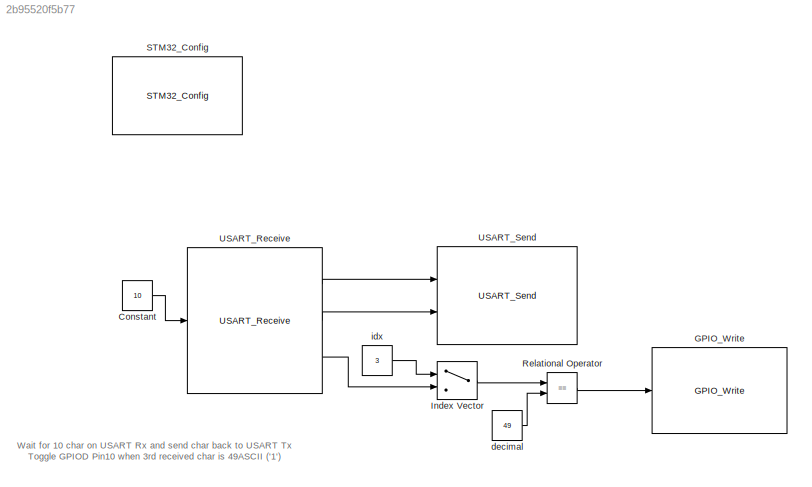
MODEL slx_2b95520f5b77
KIND model
CONFIG AbsTol = auto
CONFIG EnableMultiTasking = on
CONFIG FixedStep = auto
CONFIG MaxStep = auto
CONFIG MinStep = auto
CONFIG RelTol = 1e-3
CONFIG SampleTimeConstraint = Unconstrained
CONFIG Solver = FixedStepDiscrete
CONFIG SolverName = FixedStepDiscrete
CONFIG StartTime = 0.0
CONFIG StopTime = 10.0
BLOCK [Constant] Constant
  OutDataTypeStr = uint16
  Value = 10
BLOCK [Reference] GPIO_Write  REF=GPIO_Lib/GPIO_Write
  Ports = [1]
  SourceBlock = GPIO_Lib/GPIO_Write
  SourceProductName = Target Support Package - STM32 Adapter
  SourceType = GPIO_Write
BLOCK [MultiPortSwitch] Index Vector
  DataPortOrder = Zero-based contiguous
  InputSameDT = off
  Inputs = 1
  OutDataTypeStr = uint8
  Ports = [2, 1]
  SaturateOnIntegerOverflow = off
  zeroidx = on
BLOCK [RelationalOperator] Relational Operator
  InputSameDT = off
  Operator = ==
  OutDataTypeStr = boolean
  Ports = [2, 1]
BLOCK [Reference] STM32_Config  REF=STM32_Config_Lib/STM32_Config
  Ports = []
  Priority = 0
  SourceBlock = STM32_Config_Lib/STM32_Config
  SourceProductName = Target Support Package - STM32 Adapter
  SourceType = STM32_Config
BLOCK [Reference] USART_Receive  REF=USART_Lib/USART_Receive
  Ports = [1, 3]
  SourceBlock = USART_Lib/USART_Receive
  SourceProductName = Target Support Package - STM32 Adapter
  SourceType = USART_Receive
BLOCK [Reference] USART_Send  REF=USART_Lib/USART_Send
  Ports = [2, 1]
  SourceBlock = USART_Lib/USART_Send
  SourceProductName = Target Support Package - STM32 Adapter
  SourceType = USART_Send
BLOCK [Constant] decimal
  OutDataTypeStr = uint8
  Value = 49
BLOCK [Constant] idx
  OutDataTypeStr = uint8
  Value = 3
ANNOTATION (root): Wait for 10 char on USART Rx and send char back to USART Tx Toggle GPIOD Pin10 when 3rd received char is 49ASCII ('1')
LINE Constant:1 -> USART_Receive:1
LINE Index Vector:1 -> Relational Operator:1
LINE Relational Operator:1 -> GPIO_Write:1
LINE USART_Receive:1 -> USART_Send:1
LINE USART_Receive:2 -> USART_Send:2
LINE USART_Receive:3 -> Index Vector:2
LINE decimal:1 -> Relational Operator:2
LINE idx:1 -> Index Vector:1
